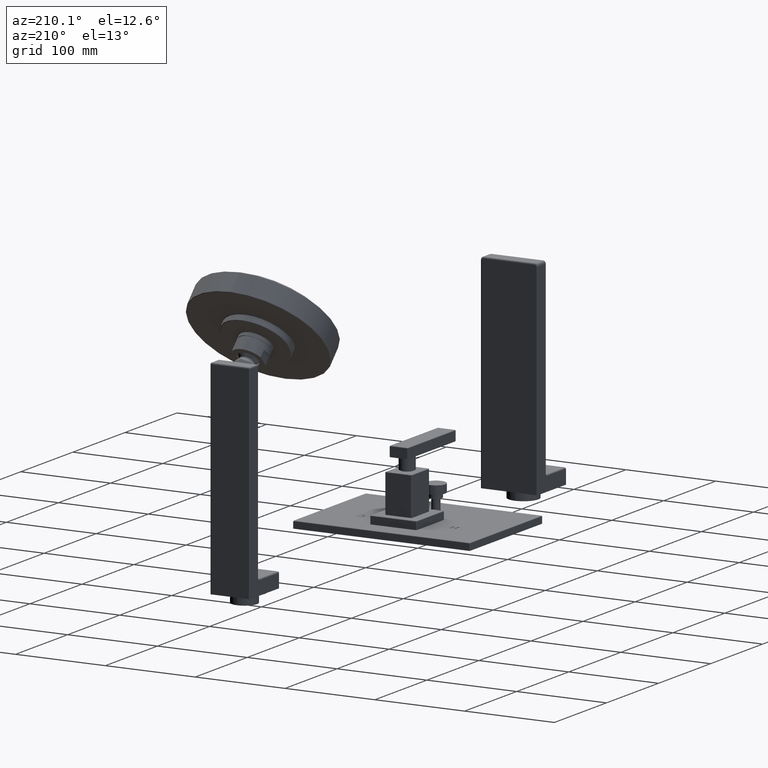
[diagram: clean part render]
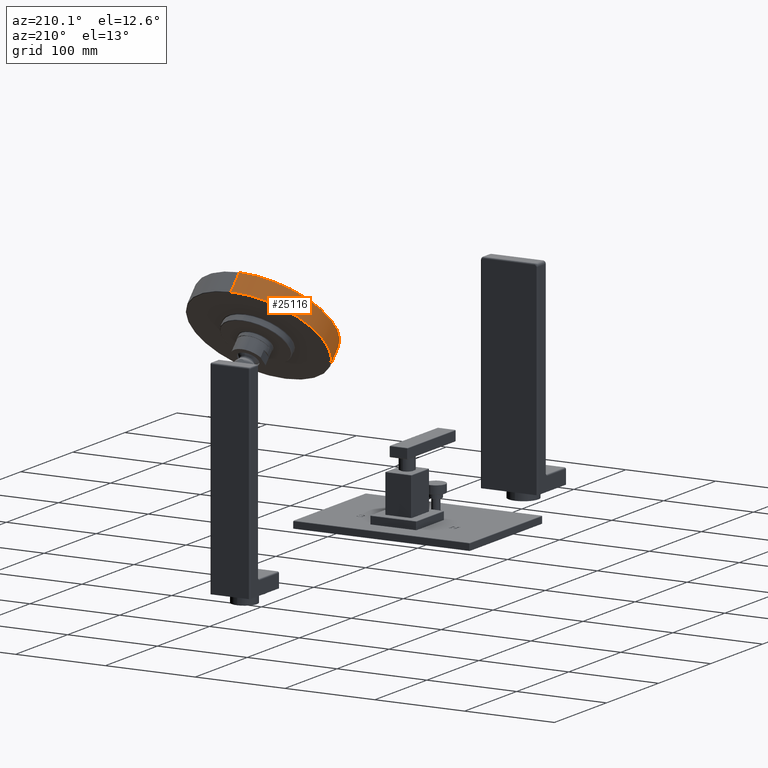
[diagram: same view with one face highlighted and labeled with its STEP entity id]
A machine part, auxiliary view. The second image highlights one B-rep face of the part: STEP entity #25116.
In plain terms, the highlighted cylindrical surface (partial cylindrical patch) has radius 75.057 mm, axis along (0, 0.7071, -0.7071).
Its self-contained STEP definition (entity closure, byte-faithful):
#21026=DIRECTION('',(5.074041461843E-14,-7.071067811865E-1,7.071067811865E-1));
#21027=VECTOR('',#21026,8.786794919243E-1);
#21028=CARTESIAN_POINT('',(0.E0,1.411567430064E1,1.183877338558E1));
#21029=LINE('',#21028,#21027);
#21041=DIRECTION('',(-5.140768771747E-14,-7.071067811865E-1,7.071067811865E-1));
#21042=VECTOR('',#21041,8.786794919243E-1);
#21043=CARTESIAN_POINT('',(0.E0,9.936673223826E0,7.659772308768E0));
#21044=LINE('',#21043,#21042);
#21048=CARTESIAN_POINT('',(0.E0,1.140485353500E1,1.037059307440E1));
#21049=DIRECTION('',(0.E0,-7.071067811865E-1,7.071067811865E-1));
#21050=DIRECTION('',(0.E0,7.071067811865E-1,7.071067811865E-1));
#21051=AXIS2_PLACEMENT_3D('',#21048,#21049,#21050);
#21056=CARTESIAN_POINT('',(0.E0,1.202617376223E1,9.749272847174E0));
#21057=DIRECTION('',(0.E0,-7.071067811865E-1,7.071067811865E-1));
#21058=DIRECTION('',(0.E0,7.071067811865E-1,7.071067811865E-1));
#21059=AXIS2_PLACEMENT_3D('',#21056,#21057,#21058);
#24293=CARTESIAN_POINT('',(0.E0,9.315352996597E0,8.281092535997E0));
#24294=CARTESIAN_POINT('',(0.E0,1.349435407341E1,1.246009361281E1));
#24295=VERTEX_POINT('',#24293);
#24296=VERTEX_POINT('',#24294);
#24305=CARTESIAN_POINT('',(0.E0,1.411567430064E1,1.183877338558E1));
#24306=CARTESIAN_POINT('',(0.E0,9.936673223826E0,7.659772308768E0));
#24307=VERTEX_POINT('',#24305);
#24308=VERTEX_POINT('',#24306);
#25104=CARTESIAN_POINT('',(0.E0,1.121052609013E1,1.056492051927E1));
#25105=DIRECTION('',(0.E0,7.071067811865E-1,-7.071067811865E-1));
#25106=DIRECTION('',(0.E0,7.071067811865E-1,7.071067811865E-1));
#25107=AXIS2_PLACEMENT_3D('',#25104,#25105,#25106);
#25108=CYLINDRICAL_SURFACE('',#25107,2.955E0);
#25109=ORIENTED_EDGE('',*,*,#25008,.T.);
#25110=ORIENTED_EDGE('',*,*,#25092,.F.);
#25112=ORIENTED_EDGE('',*,*,#25111,.F.);
#25113=ORIENTED_EDGE('',*,*,#25088,.T.);
#25114=EDGE_LOOP('',(#25109,#25110,#25112,#25113));
#25115=FACE_OUTER_BOUND('',#25114,.F.);
#21052=CIRCLE('',#21051,2.955E0);
#21060=CIRCLE('',#21059,2.955E0);
#25008=EDGE_CURVE('',#24296,#24295,#21052,.T.);
#25088=EDGE_CURVE('',#24307,#24296,#21029,.T.);
#25092=EDGE_CURVE('',#24308,#24295,#21044,.T.);
#25111=EDGE_CURVE('',#24307,#24308,#21060,.T.);
#25116=ADVANCED_FACE('',(#25115),#25108,.T.);